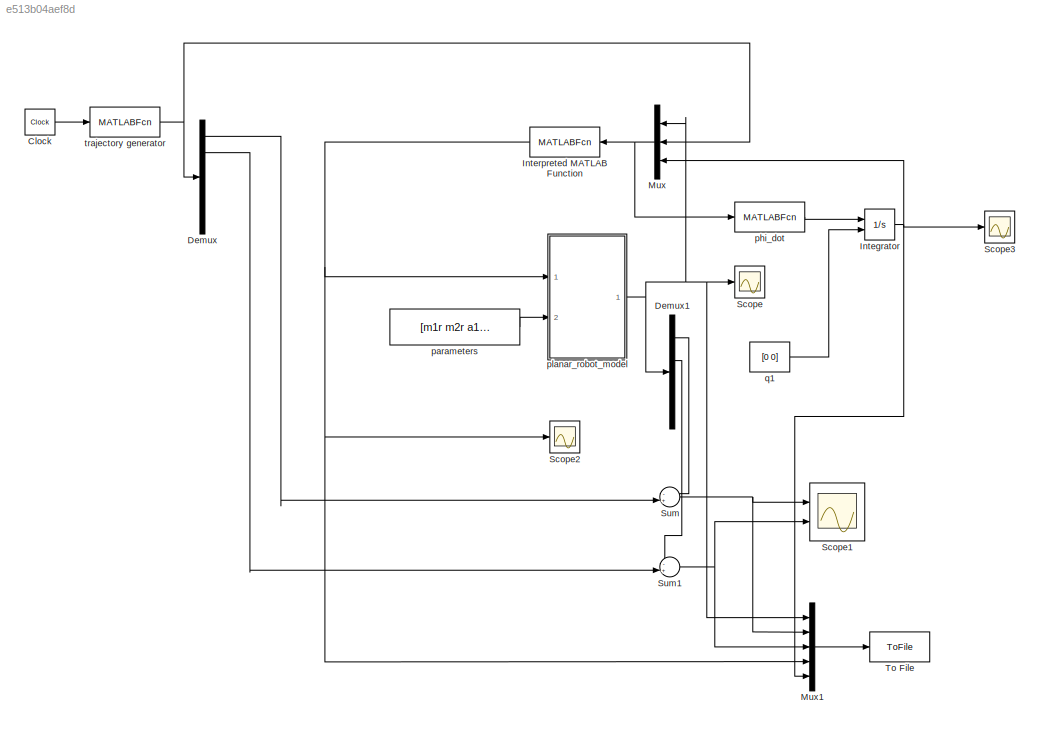
MODEL slx_e513b04aef8d
KIND model
CONFIG AbsTol = auto
CONFIG EnableMultiTasking = on
CONFIG FixedStep = 0.001
CONFIG MaxStep = 0.001
CONFIG MinStep = auto
CONFIG RelTol = 1e-3
CONFIG SampleTimeConstraint = Unconstrained
CONFIG Solver = ode3
CONFIG SolverName = ode3
CONFIG StartTime = 0.0
CONFIG StopTime = 10
BLOCK [Clock] Clock
BLOCK [Demux] Demux
  DisplayOption = bar
  Outputs = 6
  Ports = [1, 6]
BLOCK [Demux] Demux1
  DisplayOption = bar
  Ports = [1, 4]
BLOCK [Integrator] Integrator
  InitialConditionSource = external
  Ports = [2, 1]
BLOCK [MATLABFcn] Interpreted MATLAB Function
  MATLABFcn = ac_controller_simulink
  Ports = [1, 1]
BLOCK [Mux] Mux
  DisplayOption = bar
  Inputs = 3
  Ports = [3, 1]
BLOCK [Mux] Mux1
  DisplayOption = bar
  Inputs = 5
  Ports = [5, 1]
BLOCK [Scope] Scope
  NumInputPorts = 1
  Ports = [1]
  ScopeSpecificationString = Simulink.scopes.TimeScopeBlockCfg('CurrentConfiguration', extmgr.ConfigurationSet(extmgr.Configuration('Core','General UI',true),extmgr.Configuration('Core','Source UI',true),extmgr.Configuration('Sources','WiredSimulink',true,'DataLoggingSaveFormat','Array','DataLoggingDecimation','1','DataLoggingDecimateData',true),extmgr.Configuration('Visuals','Time Domain',true,'SerializedDisplays',{struct('M...<+1722ch>
BLOCK [Scope] Scope1
  NumInputPorts = 2
  Ports = [2]
  ScopeSpecificationString = Simulink.scopes.TimeScopeBlockCfg('CurrentConfiguration', extmgr.ConfigurationSet(extmgr.Configuration('Core','General UI',true),extmgr.Configuration('Core','Source UI',true),extmgr.Configuration('Sources','WiredSimulink',true,'DataLoggingVariableName','ScopeData1','DataLoggingSaveFormat','Array','DataLoggingDecimation','1','DataLoggingDecimateData',true),extmgr.Configuration('Visuals','Time Domai...<+2349ch>
BLOCK [Scope] Scope2
  NumInputPorts = 1
  Ports = [1]
  ScopeSpecificationString = Simulink.scopes.TimeScopeBlockCfg('CurrentConfiguration', extmgr.ConfigurationSet(extmgr.Configuration('Core','General UI',true),extmgr.Configuration('Core','Source UI',true),extmgr.Configuration('Sources','WiredSimulink',true,'DataLoggingVariableName','ScopeData2','DataLoggingSaveFormat','Array','DataLoggingDecimation','1','DataLoggingDecimateData',true),extmgr.Configuration('Visuals','Time Domai...<+1666ch>
BLOCK [Scope] Scope3
  NumInputPorts = 1
  Ports = [1]
  ScopeSpecificationString = Simulink.scopes.TimeScopeBlockCfg('CurrentConfiguration', extmgr.ConfigurationSet(extmgr.Configuration('Core','General UI',true),extmgr.Configuration('Core','Source UI',true),extmgr.Configuration('Sources','WiredSimulink',true,'DataLoggingVariableName','ScopeData3','DataLoggingSaveFormat','Array','DataLoggingDecimation','1','DataLoggingDecimateData',true),extmgr.Configuration('Visuals','Time Domai...<+1703ch>
BLOCK [Sum] Sum
  IconShape = round
  InputSameDT = off
  Inputs = -+|
  OutDataTypeStr = Inherit: Inherit via internal rule
  Ports = [2, 1]
  SaturateOnIntegerOverflow = off
BLOCK [Sum] Sum1
  IconShape = round
  InputSameDT = off
  Inputs = -+|
  OutDataTypeStr = Inherit: Inherit via internal rule
  Ports = [2, 1]
  SaturateOnIntegerOverflow = off
BLOCK [ToFile] To File
  Filename = ac_res2.mat
  MatrixName = ac
  Ports = [1]
BLOCK [Constant] parameters
  Value = [m1r m2r a1 a2  g]
BLOCK [MATLABFcn] phi_dot
  MATLABFcn = ac_phi_dot_simulink
  Ports = [1, 1]
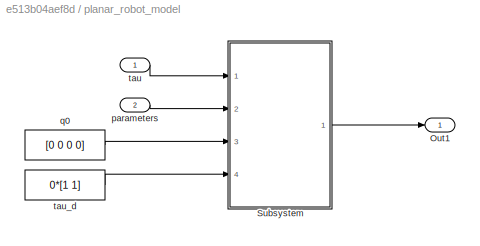
BLOCK [SubSystem] planar_robot_model
  Ports = [2, 1]
  RequestExecContextInheritance = off
  Variant = off
BLOCK [Outport] planar_robot_model/Out1
  IconDisplay = Port number
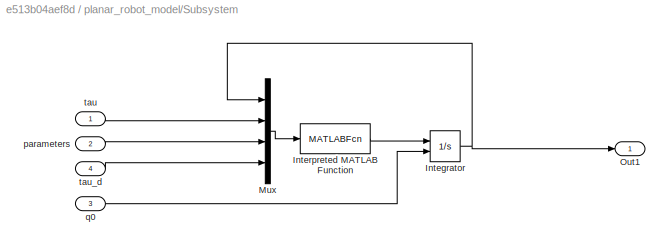
BLOCK [SubSystem] planar_robot_model/Subsystem
  Ports = [4, 1]
  RequestExecContextInheritance = off
  Variant = off
BLOCK [Integrator] planar_robot_model/Subsystem/Integrator
  InitialConditionSource = external
  Ports = [2, 1]
BLOCK [MATLABFcn] planar_robot_model/Subsystem/Interpreted MATLAB Function
  MATLABFcn = planar_robot_simulink
  OutputDimensions = 4
  Ports = [1, 1]
BLOCK [Mux] planar_robot_model/Subsystem/Mux
  DisplayOption = bar
  Ports = [4, 1]
BLOCK [Outport] planar_robot_model/Subsystem/Out1
  IconDisplay = Port number
BLOCK [Inport] planar_robot_model/Subsystem/parameters
  IconDisplay = Port number
  Port = 2
BLOCK [Inport] planar_robot_model/Subsystem/q0
  IconDisplay = Port number
  Port = 3
BLOCK [Inport] planar_robot_model/Subsystem/tau
  IconDisplay = Port number
BLOCK [Inport] planar_robot_model/Subsystem/tau_d
  IconDisplay = Port number
  Port = 4
BLOCK [Inport] planar_robot_model/parameters
  IconDisplay = Port number
  Port = 2
BLOCK [Constant] planar_robot_model/q0
  Value = [0 0 0 0]
BLOCK [Inport] planar_robot_model/tau
  IconDisplay = Port number
BLOCK [Constant] planar_robot_model/tau_d
  Value = 0*[1 1]
BLOCK [Constant] q1
  Value = [0 0]
BLOCK [MATLABFcn] trajectory generator
  MATLABFcn = trajectory3_planar_robot_simulink
  Ports = [1, 1]
LINE Clock:1 -> trajectory generator:1
LINE Demux1:1 -> Sum:1
LINE Demux1:2 -> Sum1:1
LINE Demux:1 -> Sum:2
LINE Demux:2 -> Sum1:2
NET Integrator:1 -> Mux1:5, Mux:3, Scope3:1
NET Interpreted MATLAB Function:1 -> Mux1:4, Scope2:1, planar_robot_model:1
LINE Mux1:1 -> To File:1
NET Mux:1 -> Interpreted MATLAB Function:1, phi_dot:1
NET Sum1:1 -> Mux1:3, Scope1:2
NET Sum:1 -> Mux1:2, Scope1:1
LINE parameters:1 -> planar_robot_model:2
LINE phi_dot:1 -> Integrator:1
NET planar_robot_model/Subsystem/Integrator:1 -> planar_robot_model/Subsystem/Mux:1, planar_robot_model/Subsystem/Out1:1
LINE planar_robot_model/Subsystem/Interpreted MATLAB Function:1 -> planar_robot_model/Subsystem/Integrator:1
LINE planar_robot_model/Subsystem/Mux:1 -> planar_robot_model/Subsystem/Interpreted MATLAB Function:1
LINE planar_robot_model/Subsystem/parameters:1 -> planar_robot_model/Subsystem/Mux:3
LINE planar_robot_model/Subsystem/q0:1 -> planar_robot_model/Subsystem/Integrator:2
LINE planar_robot_model/Subsystem/tau:1 -> planar_robot_model/Subsystem/Mux:2
LINE planar_robot_model/Subsystem/tau_d:1 -> planar_robot_model/Subsystem/Mux:4
LINE planar_robot_model/Subsystem:1 -> planar_robot_model/Out1:1
LINE planar_robot_model/parameters:1 -> planar_robot_model/Subsystem:2
LINE planar_robot_model/q0:1 -> planar_robot_model/Subsystem:3
LINE planar_robot_model/tau:1 -> planar_robot_model/Subsystem:1
LINE planar_robot_model/tau_d:1 -> planar_robot_model/Subsystem:4
NET planar_robot_model:1 -> Demux1:1, Mux1:1, Mux:1, Scope:1
LINE q1:1 -> Integrator:2
NET trajectory generator:1 -> Demux:1, Mux:2
note: NET lines group one-source signal fan-out (src -> all destinations, sorted); 1:1 wires keep LINE
